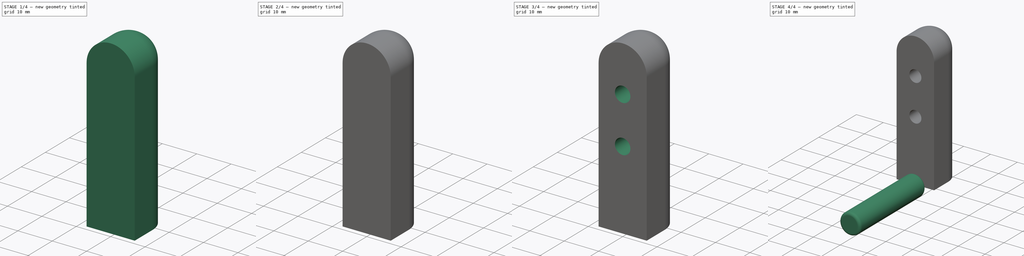
[diagram: build sequence overview — one tinted view per stage of 4, left to right]
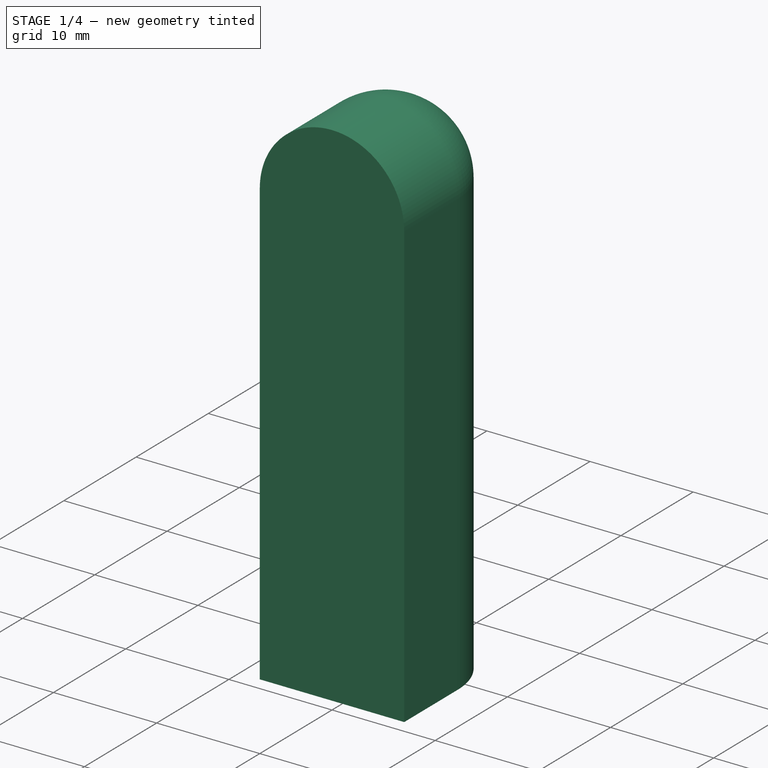
[diagram: stage 1 of 4 — iso view after this stage's code; geometry added in this stage tinted green]
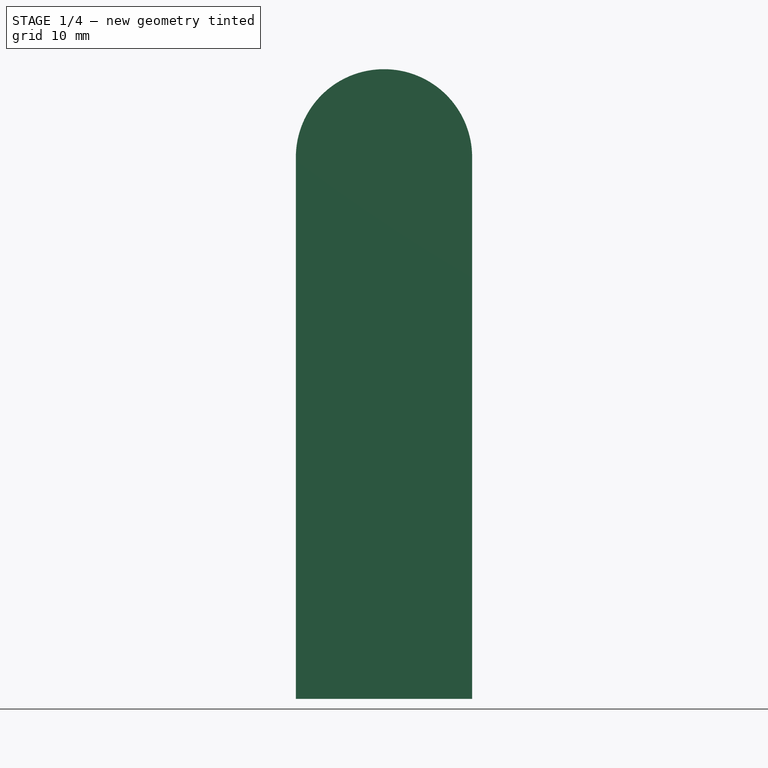
[diagram: stage 1 of 4 — front view after this stage's code; geometry added in this stage tinted green]
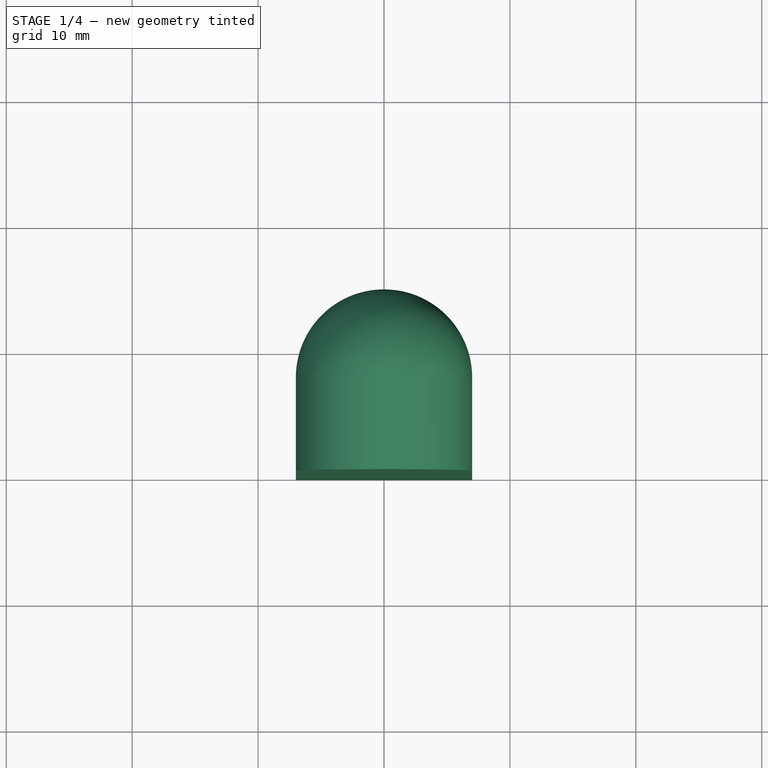
[diagram: stage 1 of 4 — top view after this stage's code; geometry added in this stage tinted green]
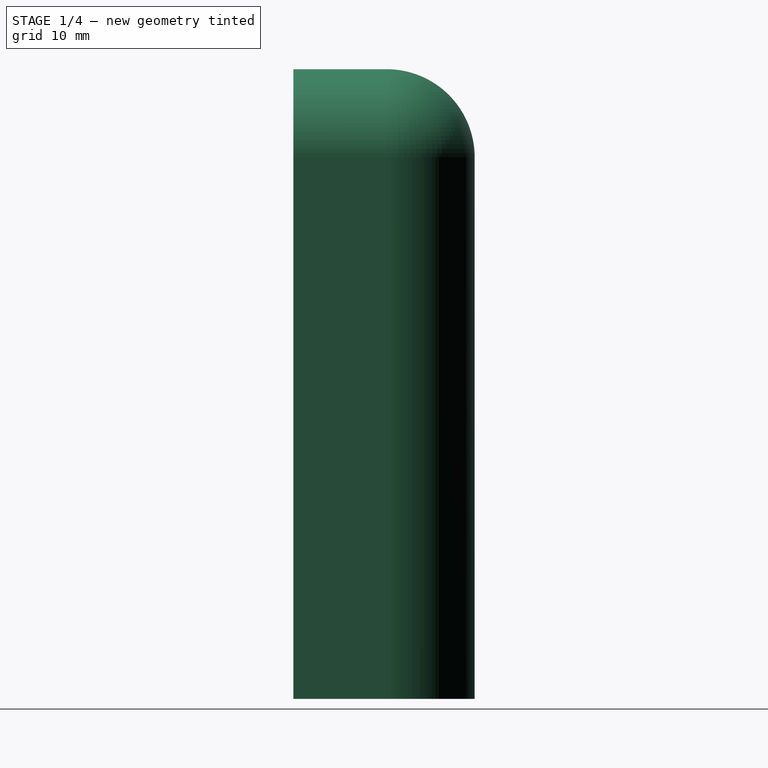
[diagram: stage 1 of 4 — right view after this stage's code; geometry added in this stage tinted green]
FCSTD DOCUMENT  (FreeCAD 0.21R33771 (Git))
Label: mosquito net hinge
License: All rights reserved
LicenseURL: http://en.wikipedia.org/wiki/All_rights_reserved
objects: Sketcher::SketchObject×5, PartDesign::Fillet×3, PartDesign::Pocket×3, PartDesign::Pad×2, PartDesign::Body×2, PartDesign::Plane×1, PartDesign::LinearPattern×1
note: 25 computed .brp shape members not serialized (recipe doc carries the construction recipe); baked Part::Feature solids carry a one-line shape summary decoded from their .brp

FEATURE [Sketcher::SketchObject] Sketch  label="base-sketch"
  FullyConstrained = true
  MapMode = 5
  Support = -> [XY_Plane]
  sketch-geometry (5):
    g0: LineSegment StartX=-7 StartY=0 StartZ=0 EndX=7 EndY=0 EndZ=0
    g1: LineSegment StartX=7 StartY=0 StartZ=0 EndX=7 EndY=7.4 EndZ=0
    g2: ArcOfCircle CenterX=0 CenterY=7.4 CenterZ=0 NormalX=0 NormalY=0 NormalZ=1 AngleXU=0 Radius=7 StartAngle=0 EndAngle=1.5708
    g3: ArcOfCircle CenterX=0 CenterY=7.4 CenterZ=0 NormalX=0 NormalY=0 NormalZ=1 AngleXU=0 Radius=7 StartAngle=1.5708 EndAngle=3.14159
    g4: LineSegment StartX=-7 StartY=7.4 StartZ=0 EndX=-7 EndY=0 EndZ=0
  constraints (14):
    c: PointOnObject(g0,g-1)
    c: Coincident(g0,g1)
    c: Vertical(g1)
    c: Tangent(g1,g2) = -1.5708
    c: PointOnObject(g2,g-2)
    c: Tangent(g3,g4) = -1.5708
    c: Coincident(g4,g0)
    c: Coincident(g2,g3)
    c: Vertical(g4)
    c: PointOnObject(g2,g-2)
    c: DistanceY(g0,g2) = 14.4  'height'
    c: Coincident(g2,g3)
    c: DistanceX(g0,g0) = 14
    c: Horizontal(g0)
FEATURE [PartDesign::Pad] Pad  label="base-pad"
  Direction = (0,0,1)
  Length = 50
  Length2 = 10
  Profile = -> Sketch
  ReferenceAxis = -> Sketch [N_Axis]
  Type = 0
FEATURE [PartDesign::Fillet] Fillet  label="rounded-back"
  Base = -> Pad [Edge10]
  BaseFeature = -> Pad
  Radius = 6.99
  SupportTransform = false
  UseAllEdges = false
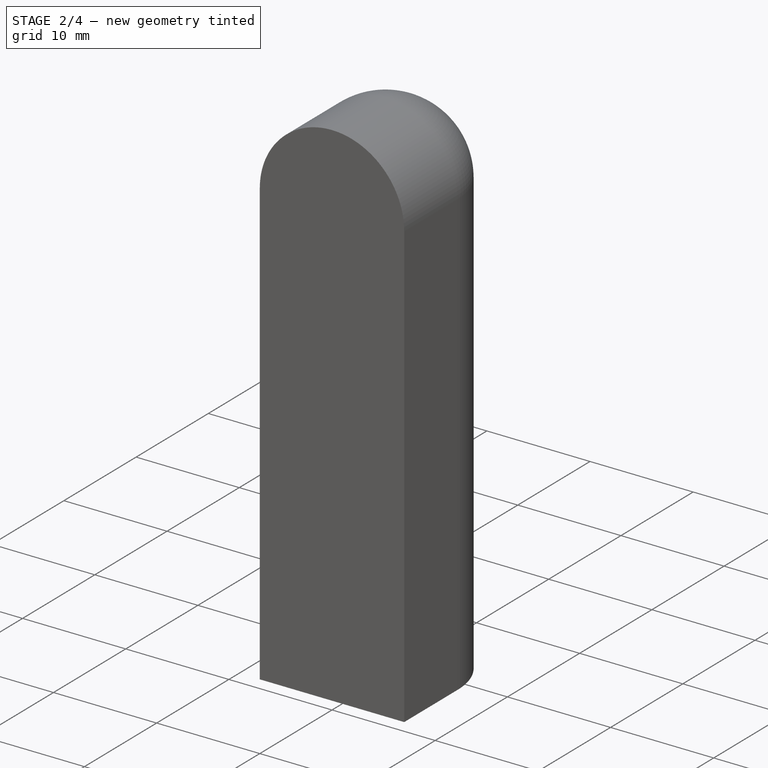
[diagram: stage 2 of 4 — iso view after this stage's code; geometry added in this stage tinted green]
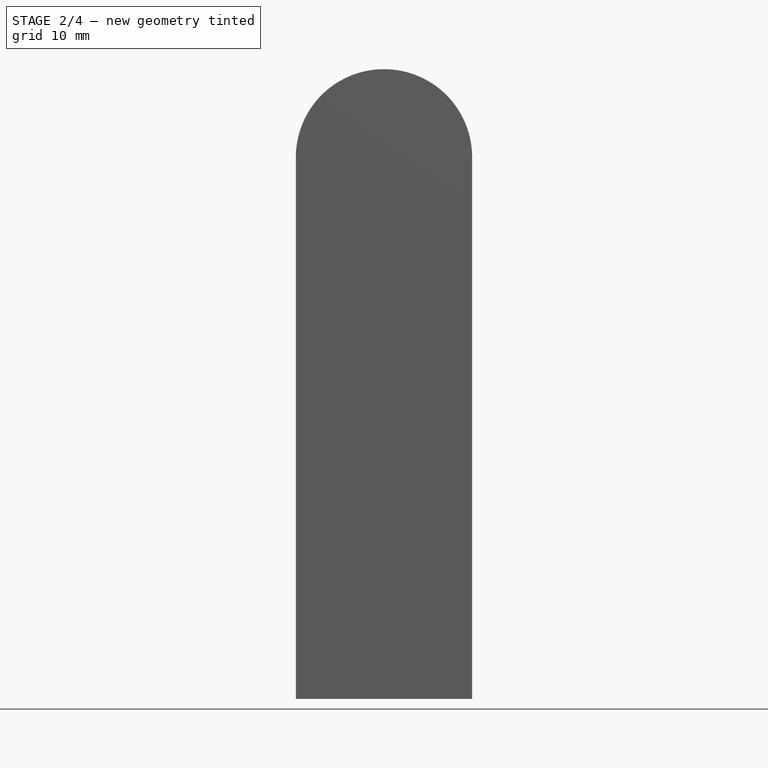
[diagram: stage 2 of 4 — front view after this stage's code; geometry added in this stage tinted green]
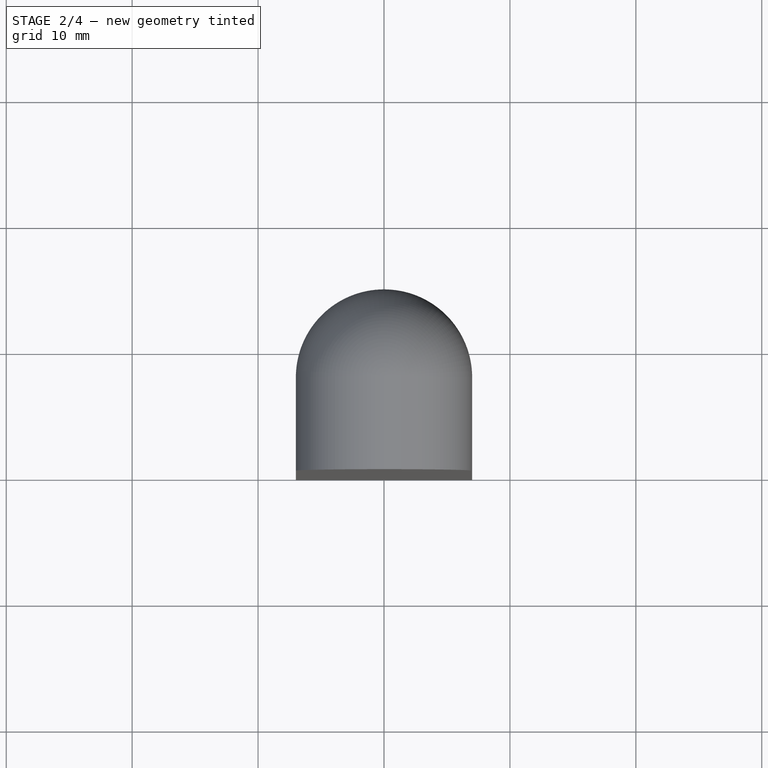
[diagram: stage 2 of 4 — top view after this stage's code; geometry added in this stage tinted green]
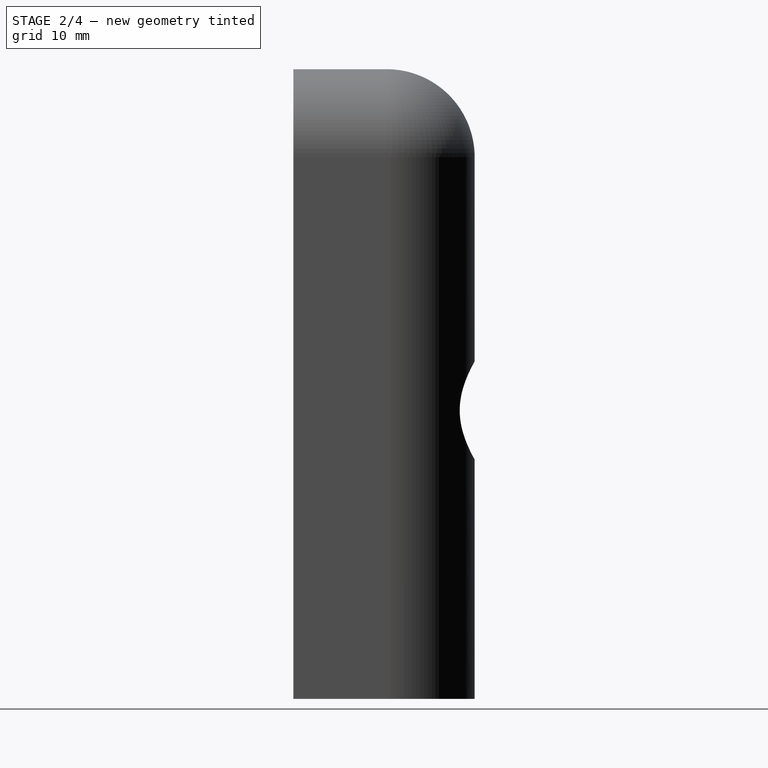
[diagram: stage 2 of 4 — right view after this stage's code; geometry added in this stage tinted green]
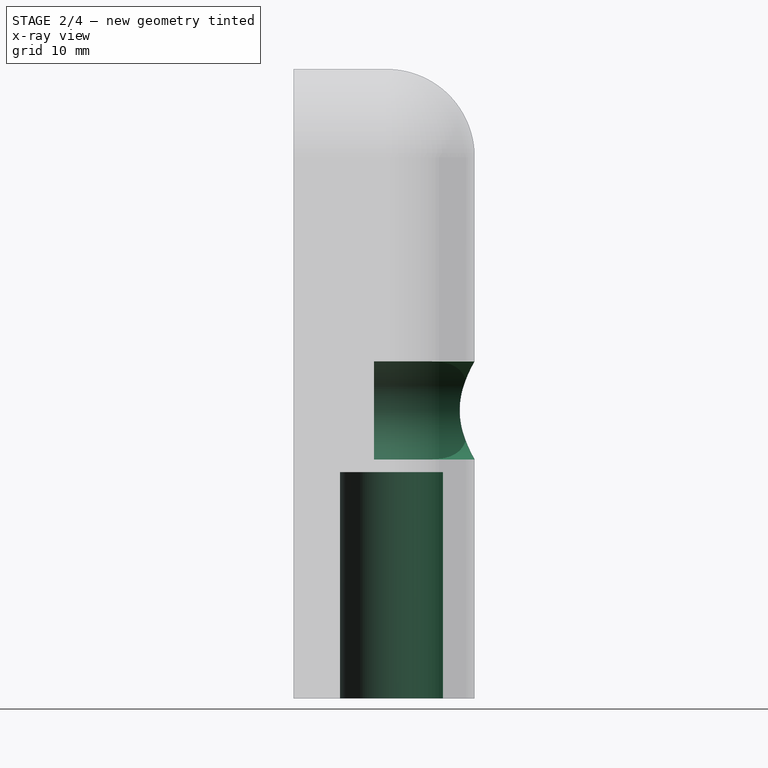
[diagram: stage 2 of 4 — x-ray composite at the right view; earlier geometry ghosted, this stage's added geometry solid]
FEATURE [Sketcher::SketchObject] Sketch001  label="front hole sketch"
  FullyConstrained = true
  MapMode = 5
  Support = -> [XY_Plane]
  expr: Constraints[2] = <<base-sketch>>.Constraints.height
  sketch-geometry (4):
    g0: Circle CenterX=0 CenterY=7.8 CenterZ=0 NormalX=0 NormalY=0 NormalZ=1 AngleXU=0 Radius=4.1
    g1: GeomPoint X=0 Y=14.4 Z=0
    g2: GeomPoint X=0 Y=11.9 Z=0
    g3: LineSegment StartX=0 StartY=11.9 StartZ=0 EndX=0 EndY=7.8 EndZ=0
  constraints (9):
    c: PointOnObject(g0,g-2)
    c: PointOnObject(g1,g-2)
    c: DistanceY(g-1,g1) = 14.4
    c: PointOnObject(g2,g0)
    c: Coincident(g3,g2)
    c: Coincident(g3,g0)
    c: Vertical(g3)
    c: DistanceY(g2,g1) = 2.5
    c: Diameter(g0) = 8.2
FEATURE [PartDesign::Pocket] Pocket  label="front hole"
  BaseFeature = -> Fillet
  Direction = (0,0,-1)
  Length = 18
  Length2 = 5
  Profile = -> Sketch001
  ReferenceAxis = -> Sketch001 [N_Axis]
  Reversed = true
  Type = 0
FEATURE [PartDesign::Plane] DatumPlane
  AttachmentOffset = pos=(0,19,-14.4) rot=(0,1,0;3.14159rad)
  Length = 62.2474
  MapMode = 5
  Placement = pos=(0,14.4,19) rot=(0,0.707107,0.707107;3.14159rad)
  ResizeMode = 0
  Support = -> [XZ_Plane]
  Width = 87.2474
  expr: .AttachmentOffset.Base.z = -Sketch.Constraints.height
FEATURE [Sketcher::SketchObject] Sketch002  label="wide screw hole scketch"
  FullyConstrained = true
  MapMode = 5
  Placement = pos=(0,14.4,19) rot=(0,0.707107,0.707107;3.14159rad)
  Support = -> [DatumPlane]
  sketch-geometry (1):
    g0: Circle CenterX=0 CenterY=3.9 CenterZ=0 NormalX=0 NormalY=0 NormalZ=1 AngleXU=0 Radius=3.9
  constraints (3):
    c: PointOnObject(g0,g-2)
    c: Diameter(g0) = 7.8  'R'
    c: PointOnObject(g-1,g0)
FEATURE [PartDesign::Pocket] Pocket001  label="wide screw hole"
  BaseFeature = -> Pocket
  Direction = (-1e-16,-1,-4e-16)
  Length = 8
  Length2 = 5
  Profile = -> Sketch002
  ReferenceAxis = -> Sketch002 [N_Axis]
  Type = 0
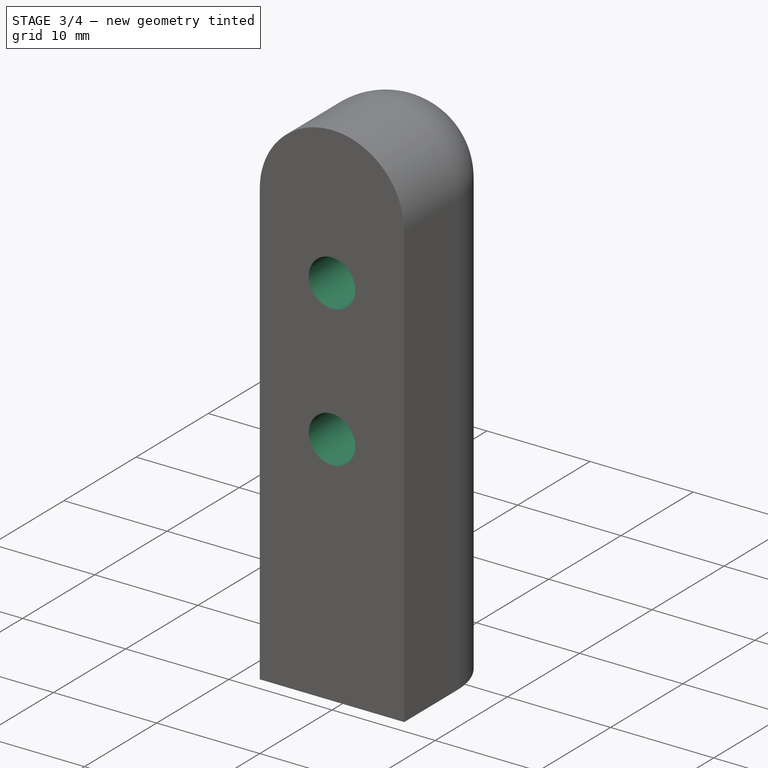
[diagram: stage 3 of 4 — iso view after this stage's code; geometry added in this stage tinted green]
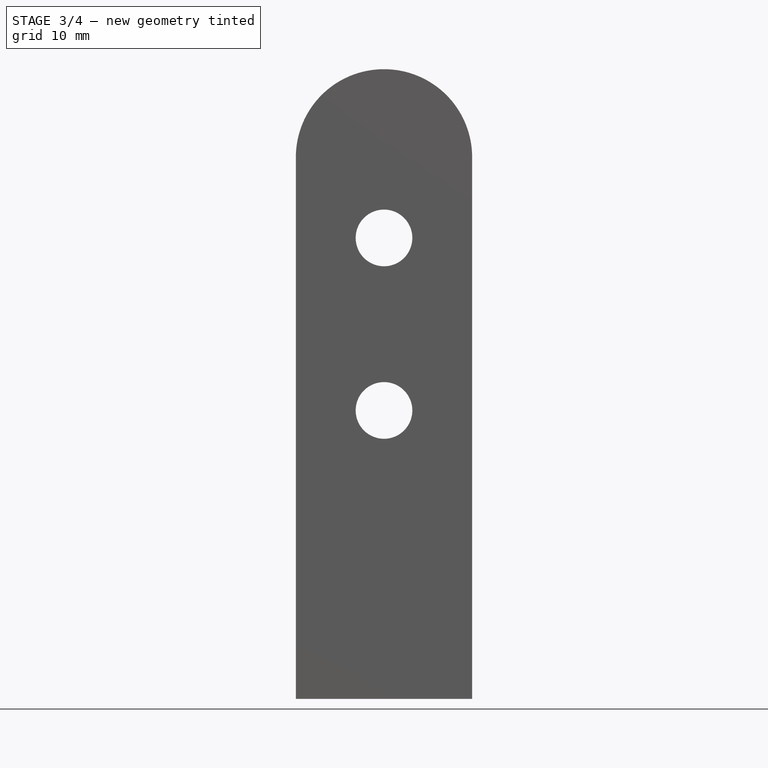
[diagram: stage 3 of 4 — front view after this stage's code; geometry added in this stage tinted green]
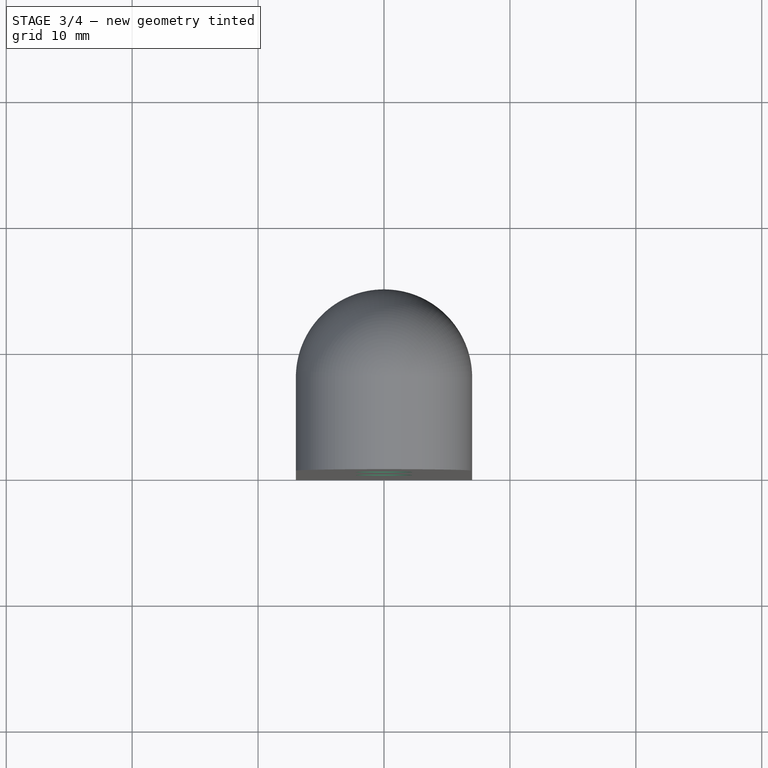
[diagram: stage 3 of 4 — top view after this stage's code; geometry added in this stage tinted green]
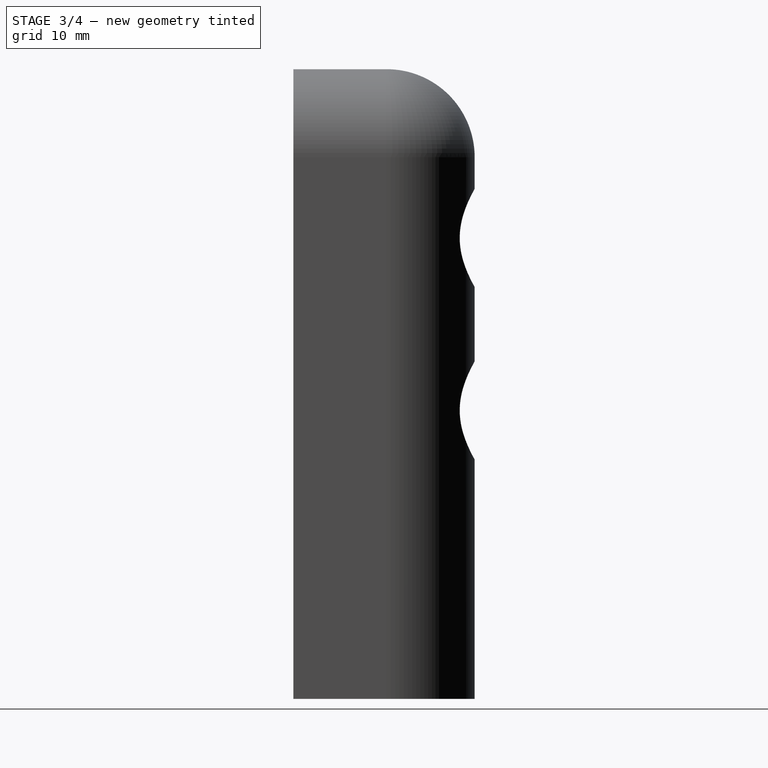
[diagram: stage 3 of 4 — right view after this stage's code; geometry added in this stage tinted green]
FEATURE [Sketcher::SketchObject] Sketch003  label="thin screw hole sketch"
  FullyConstrained = true
  MapMode = 5
  Placement = pos=(0,14.4,19) rot=(0,0.707107,0.707107;3.14159rad)
  Support = -> [DatumPlane]
  expr: Constraints[2] = <<wide screw hole scketch>>.Constraints.R / 2
  sketch-geometry (1):
    g0: Circle CenterX=0 CenterY=3.9 CenterZ=0 NormalX=0 NormalY=0 NormalZ=1 AngleXU=0 Radius=2.25
  constraints (3):
    c: PointOnObject(g0,g-2)
    c: Diameter(g0) = 4.5
    c: DistanceY(g-1,g0) = 3.9
FEATURE [PartDesign::Pocket] Pocket002  label="thin screw hole"
  BaseFeature = -> Pocket001
  Direction = (-1e-16,-1,-4e-16)
  Length = 5
  Length2 = 5
  Profile = -> Sketch003
  ReferenceAxis = -> Sketch003 [N_Axis]
  Type = 1
FEATURE [PartDesign::LinearPattern] LinearPattern
  BaseFeature = -> Pocket002
  Direction = -> Z_Axis
  Length = 13.7
  Occurrences = 2
  Originals = -> [Pocket001,Pocket002]
FEATURE [PartDesign::Body] Body001  label="axel"
  Group = -> [Sketch004,Pad001,Fillet001]
  Origin = -> Origin001
  Placement = pos=(30,15,15) rot=(0,0,1;0rad)
  Tip = -> Fillet001
FEATURE [PartDesign::Fillet] Fillet002
  Base = -> LinearPattern [Edge17]
  BaseFeature = -> LinearPattern
  Radius = 1
  SupportTransform = false
  UseAllEdges = false
FEATURE [PartDesign::Body] Body  label="atachmnet"
  Group = -> [Sketch,Pad,Fillet,Sketch001,Pocket,DatumPlane,Sketch002,Pocket001,Pocket002,Sketch003,LinearPattern,Fillet002]
  Origin = -> Origin
  Tip = -> Fillet002
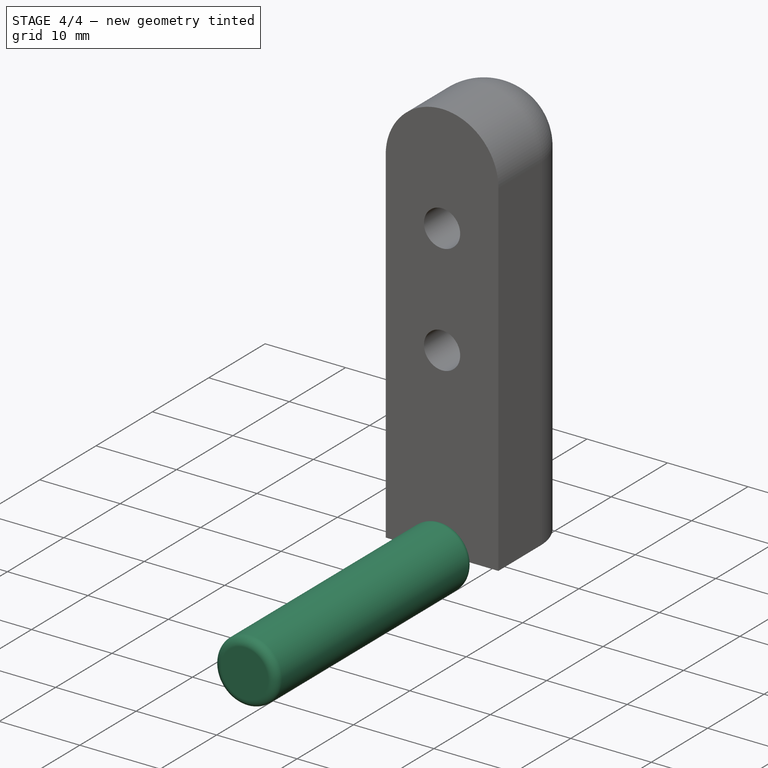
[diagram: stage 4 of 4 — iso view after this stage's code; geometry added in this stage tinted green]
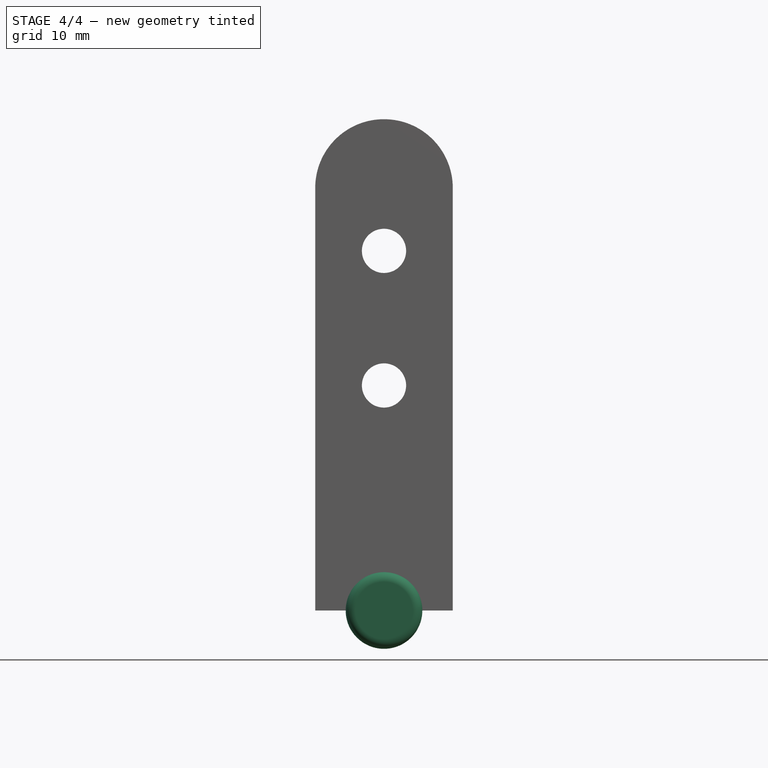
[diagram: stage 4 of 4 — front view after this stage's code; geometry added in this stage tinted green]
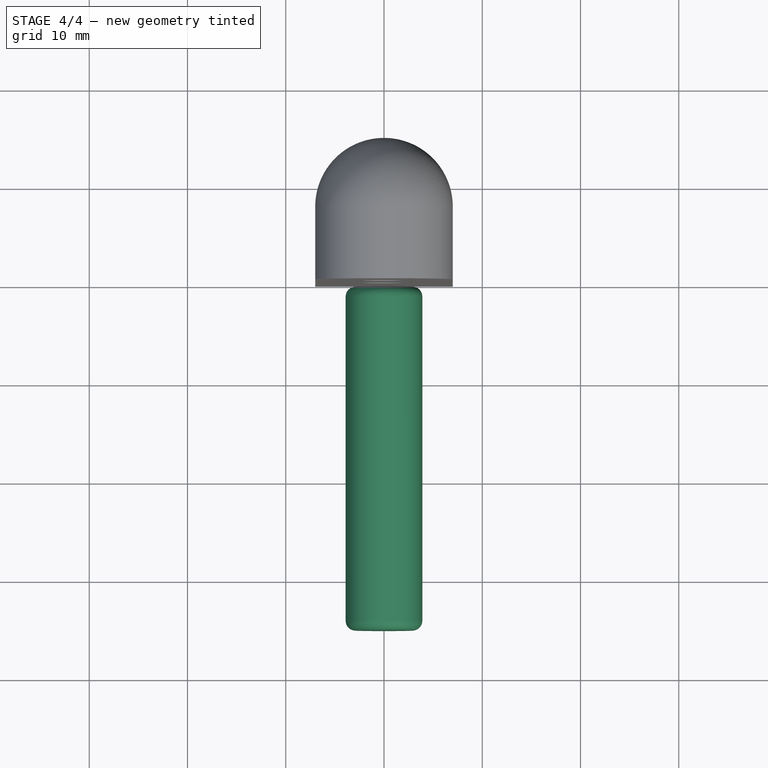
[diagram: stage 4 of 4 — top view after this stage's code; geometry added in this stage tinted green]
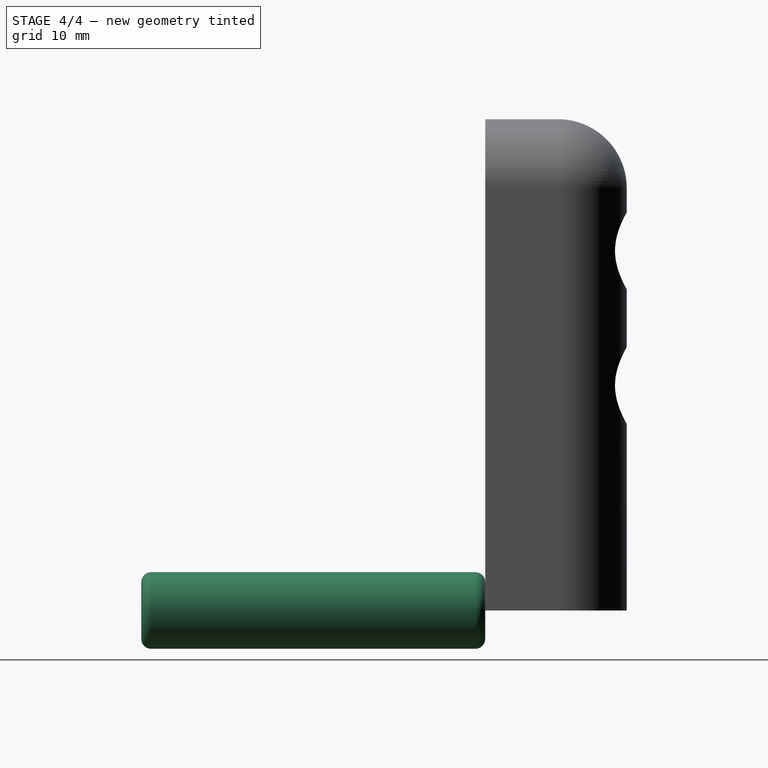
[diagram: stage 4 of 4 — right view after this stage's code; geometry added in this stage tinted green]
FEATURE [Sketcher::SketchObject] Sketch004
  FullyConstrained = true
  MapMode = 5
  Placement = pos=(0,0,0) rot=(1,0,0;1.5708rad)
  Support = -> [XZ_Plane001]
  sketch-geometry (1):
    g0: Circle CenterX=0 CenterY=0 CenterZ=0 NormalX=0 NormalY=0 NormalZ=1 AngleXU=0 Radius=3.9
  constraints (2):
    c: Coincident(g0,g-1)
    c: Diameter(g0) = 7.8
FEATURE [PartDesign::Pad] Pad001
  Direction = (0,-1,-2e-16)
  Length = 35
  Length2 = 10
  Placement = pos=(0,0,0) rot=(1,0,0;1.5708rad)
  Profile = -> Sketch004
  ReferenceAxis = -> Sketch004 [N_Axis]
  Type = 0
FEATURE [PartDesign::Fillet] Fillet001
  Base = -> Pad001 [Edge2,Edge3]
  BaseFeature = -> Pad001
  Placement = pos=(0,0,0) rot=(1,0,0;1.5708rad)
  Radius = 1
  SupportTransform = false
  UseAllEdges = false
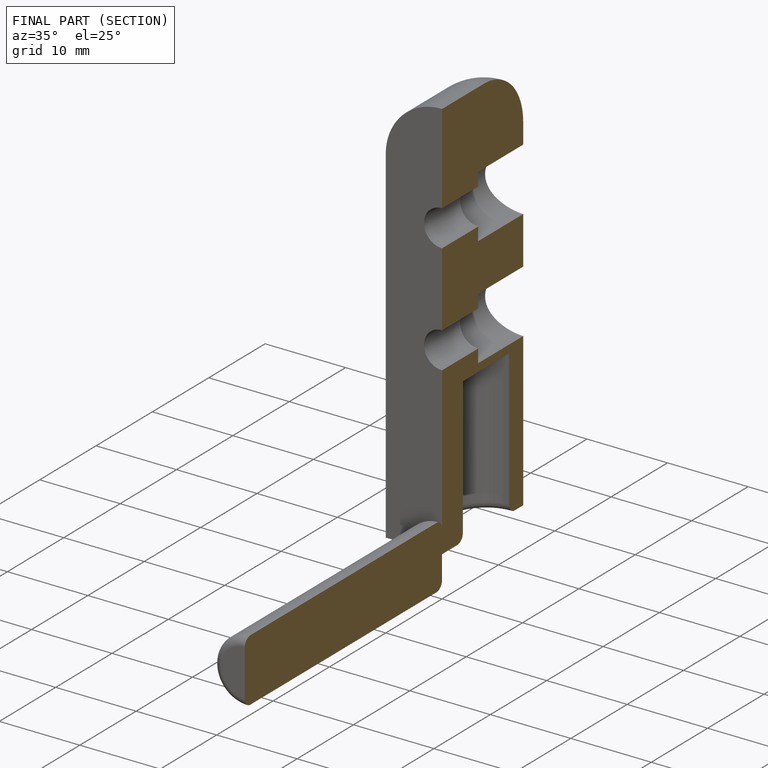
[diagram: finished part — half-section view (interior)]
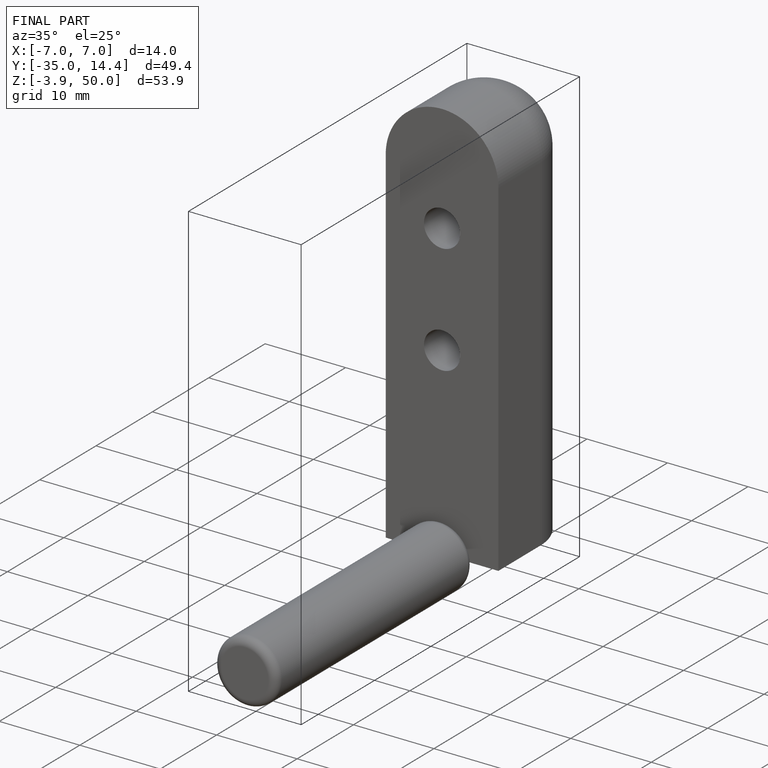
[diagram: finished part — iso view with bounding-box wireframe]
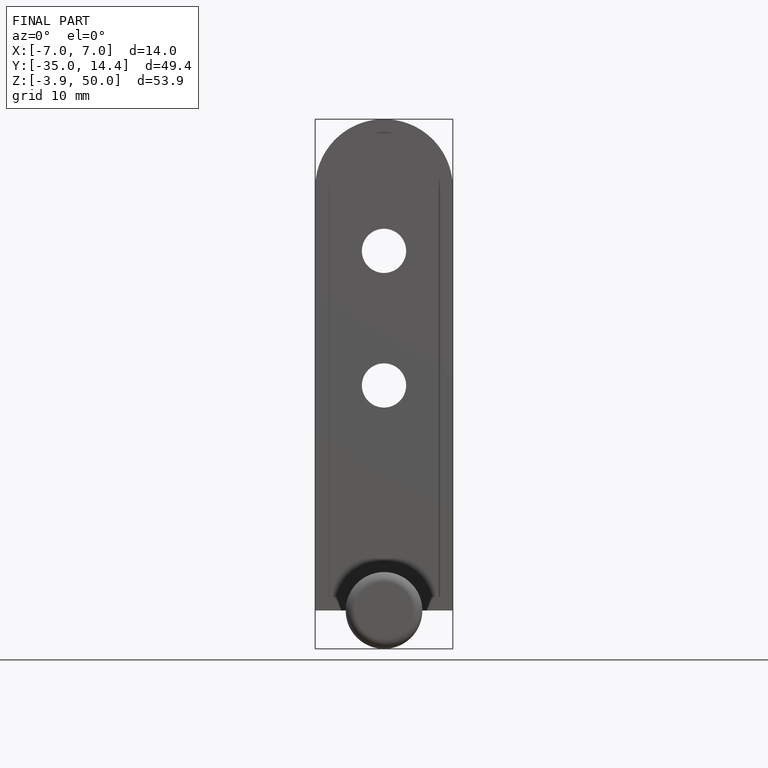
[diagram: finished part — front view with bounding-box wireframe]
